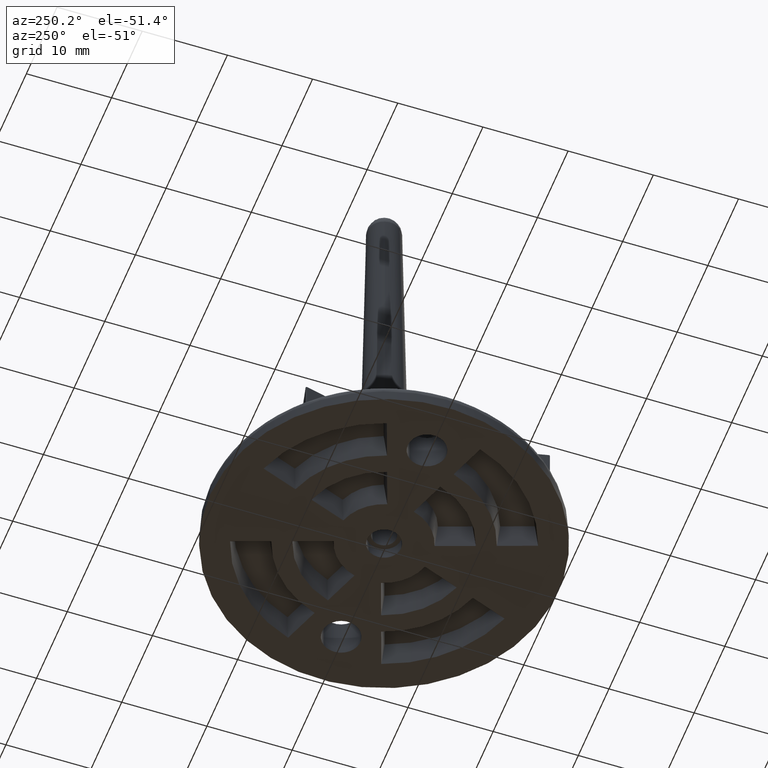
[diagram: clean part render]
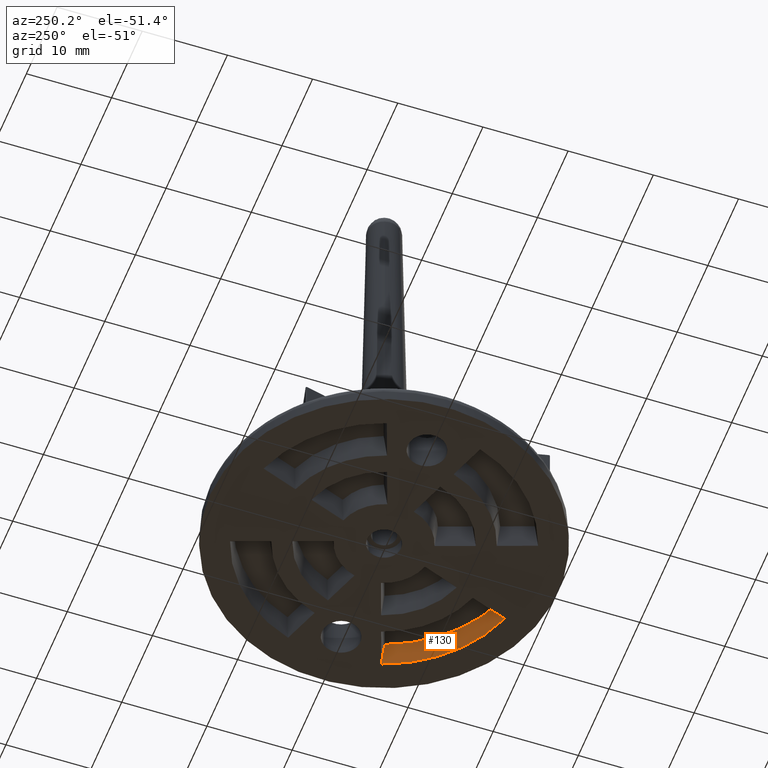
[diagram: same view with one face highlighted and labeled with its STEP entity id]
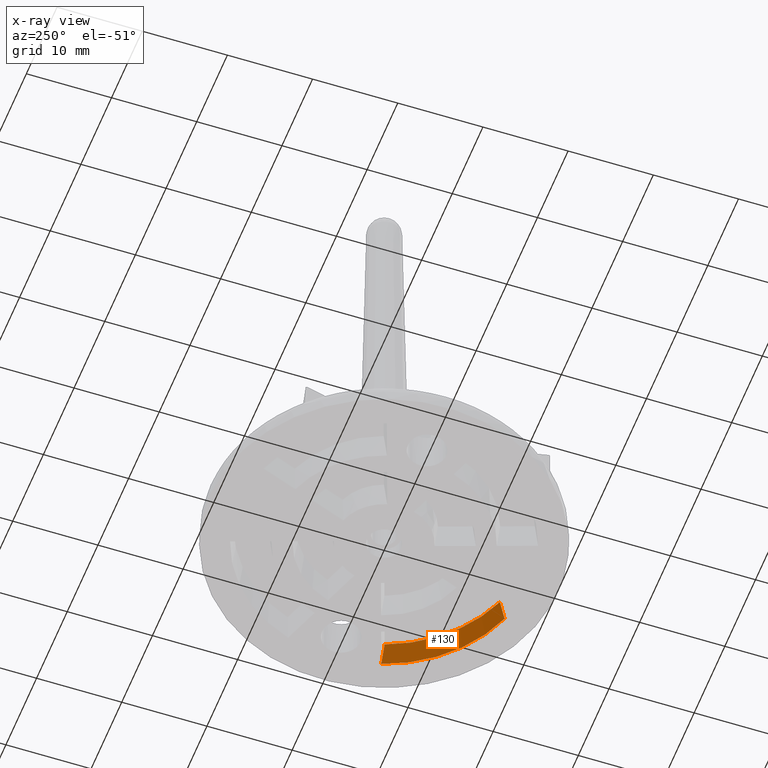
[diagram: x-ray of the same camera — body ghosted, the highlighted face saturated]
A machine part, auxiliary view. The second image highlights one B-rep face of the part: STEP entity #130.
The next image is the same camera in x-ray: the body ghosted, the highlighted face saturated — about 0% of this face is hidden behind the body in this view.
In plain terms, the highlighted conical surface has half-angle 7 deg.
Its self-contained STEP definition (entity closure, byte-faithful):
#130 = ADVANCED_FACE( '', ( #265 ), #266, .F. );
#265 = FACE_OUTER_BOUND( '', #541, .T. );
#266 = CONICAL_SURFACE( '', #542, 16.6499850000000, 0.122173047639603 );
#541 = EDGE_LOOP( '', ( #870, #871, #872, #873 ) );
#542 = AXIS2_PLACEMENT_3D( '', #874, #875, #876 );
#870 = ORIENTED_EDGE( '', *, *, #1727, .F. );
#871 = ORIENTED_EDGE( '', *, *, #1728, .F. );
#872 = ORIENTED_EDGE( '', *, *, #1729, .T. );
#873 = ORIENTED_EDGE( '', *, *, #1725, .T. );
#874 = CARTESIAN_POINT( '', ( -3.36975451311746E-032, 5.50340850772073E-016, 2.99601500000000 ) );
#875 = DIRECTION( '', ( 1.12474554136660E-032, -1.83690953073357E-016, -1.00000000000000 ) );
#876 = DIRECTION( '', ( -6.12303176911189E-017, 1.00000000000000, -1.83690953073357E-016 ) );
#1725 = EDGE_CURVE( '', #2034, #2032, #2035, .T. );
#1727 = EDGE_CURVE( '', #2037, #2032, #2038, .T. );
#1728 = EDGE_CURVE( '', #2039, #2037, #2040, .T. );
#1729 = EDGE_CURVE( '', #2039, #2034, #2041, .F. );
#2032 = VERTEX_POINT( '', #2522 );
#2034 = VERTEX_POINT( '', #2525 );
#2035 = B_SPLINE_CURVE_WITH_KNOTS( '', 3, ( #2526, #2527, #2528, #2529 ), .UNSPECIFIED., .F., .F., ( 4, 4 ), ( 0.000000000000000, 0.00304036914591736 ), .UNSPECIFIED. );
#2037 = VERTEX_POINT( '', #2532 );
#2038 = CIRCLE( '', #2533, 16.6499850000000 );
#2039 = VERTEX_POINT( '', #2534 );
#2040 = B_SPLINE_CURVE_WITH_KNOTS( '', 3, ( #2535, #2536, #2537, #2538 ), .UNSPECIFIED., .F., .F., ( 4, 4 ), ( 0.000000000000000, 0.00304036914591736 ), .UNSPECIFIED. );
#2041 = CIRCLE( '', #2539, 17.0178493862335 );
#2522 = CARTESIAN_POINT( '', ( 5.69463025607024, -15.6458680406961, 2.99601500000000 ) );
#2525 = CARTESIAN_POINT( '', ( 5.47340782340071, -16.1136279133926, 3.38593238649353E-015 ) );
#2526 = CARTESIAN_POINT( '', ( 5.47340782340071, -16.1136279133926, 3.38593238649353E-015 ) );
#2527 = CARTESIAN_POINT( '', ( 5.54760358208122, -15.9589032755774, 0.998823865357394 ) );
#2528 = CARTESIAN_POINT( '', ( 5.62135431492518, -15.8030088035885, 1.99750047569523 ) );
#2529 = CARTESIAN_POINT( '', ( 5.69463025607024, -15.6458680406961, 2.99601500000000 ) );
#2532 = CARTESIAN_POINT( '', ( 15.6458680406961, -5.69463025607023, 2.99601500000000 ) );
#2533 = AXIS2_PLACEMENT_3D( '', #3241, #3242, #3243 );
#2534 = CARTESIAN_POINT( '', ( 16.1136279133926, -5.47340782340071, 1.43142021725265E-015 ) );
#2535 = CARTESIAN_POINT( '', ( 16.1136279133926, -5.47340782340071, 1.43142021725265E-015 ) );
#2536 = CARTESIAN_POINT( '', ( 15.9589032755774, -5.54760358208122, 0.998823865357392 ) );
#2537 = CARTESIAN_POINT( '', ( 15.8030088035885, -5.62135431492517, 1.99750047569523 ) );
#2538 = CARTESIAN_POINT( '', ( 15.6458680406961, -5.69463025607023, 2.99601500000000 ) );
#2539 = AXIS2_PLACEMENT_3D( '', #3244, #3245, #3246 );
#3241 = CARTESIAN_POINT( '', ( -3.36975451311746E-032, 5.50340850772073E-016, 2.99601500000000 ) );
#3242 = DIRECTION( '', ( 1.12474554136660E-032, -1.83690953073357E-016, -1.00000000000000 ) );
#3243 = DIRECTION( '', ( -1.00000000000000, -1.16741468922377E-016, 1.01968962758690E-032 ) );
#3244 = CARTESIAN_POINT( '', ( -4.79146906736365E-048, 7.82532125920789E-032, 4.26004717613004E-016 ) );
#3245 = DIRECTION( '', ( -1.12474554136660E-032, 1.83690953073357E-016, 1.00000000000000 ) );
#3246 = DIRECTION( '', ( 6.12303176911189E-017, -1.00000000000000, 1.83690953073357E-016 ) );